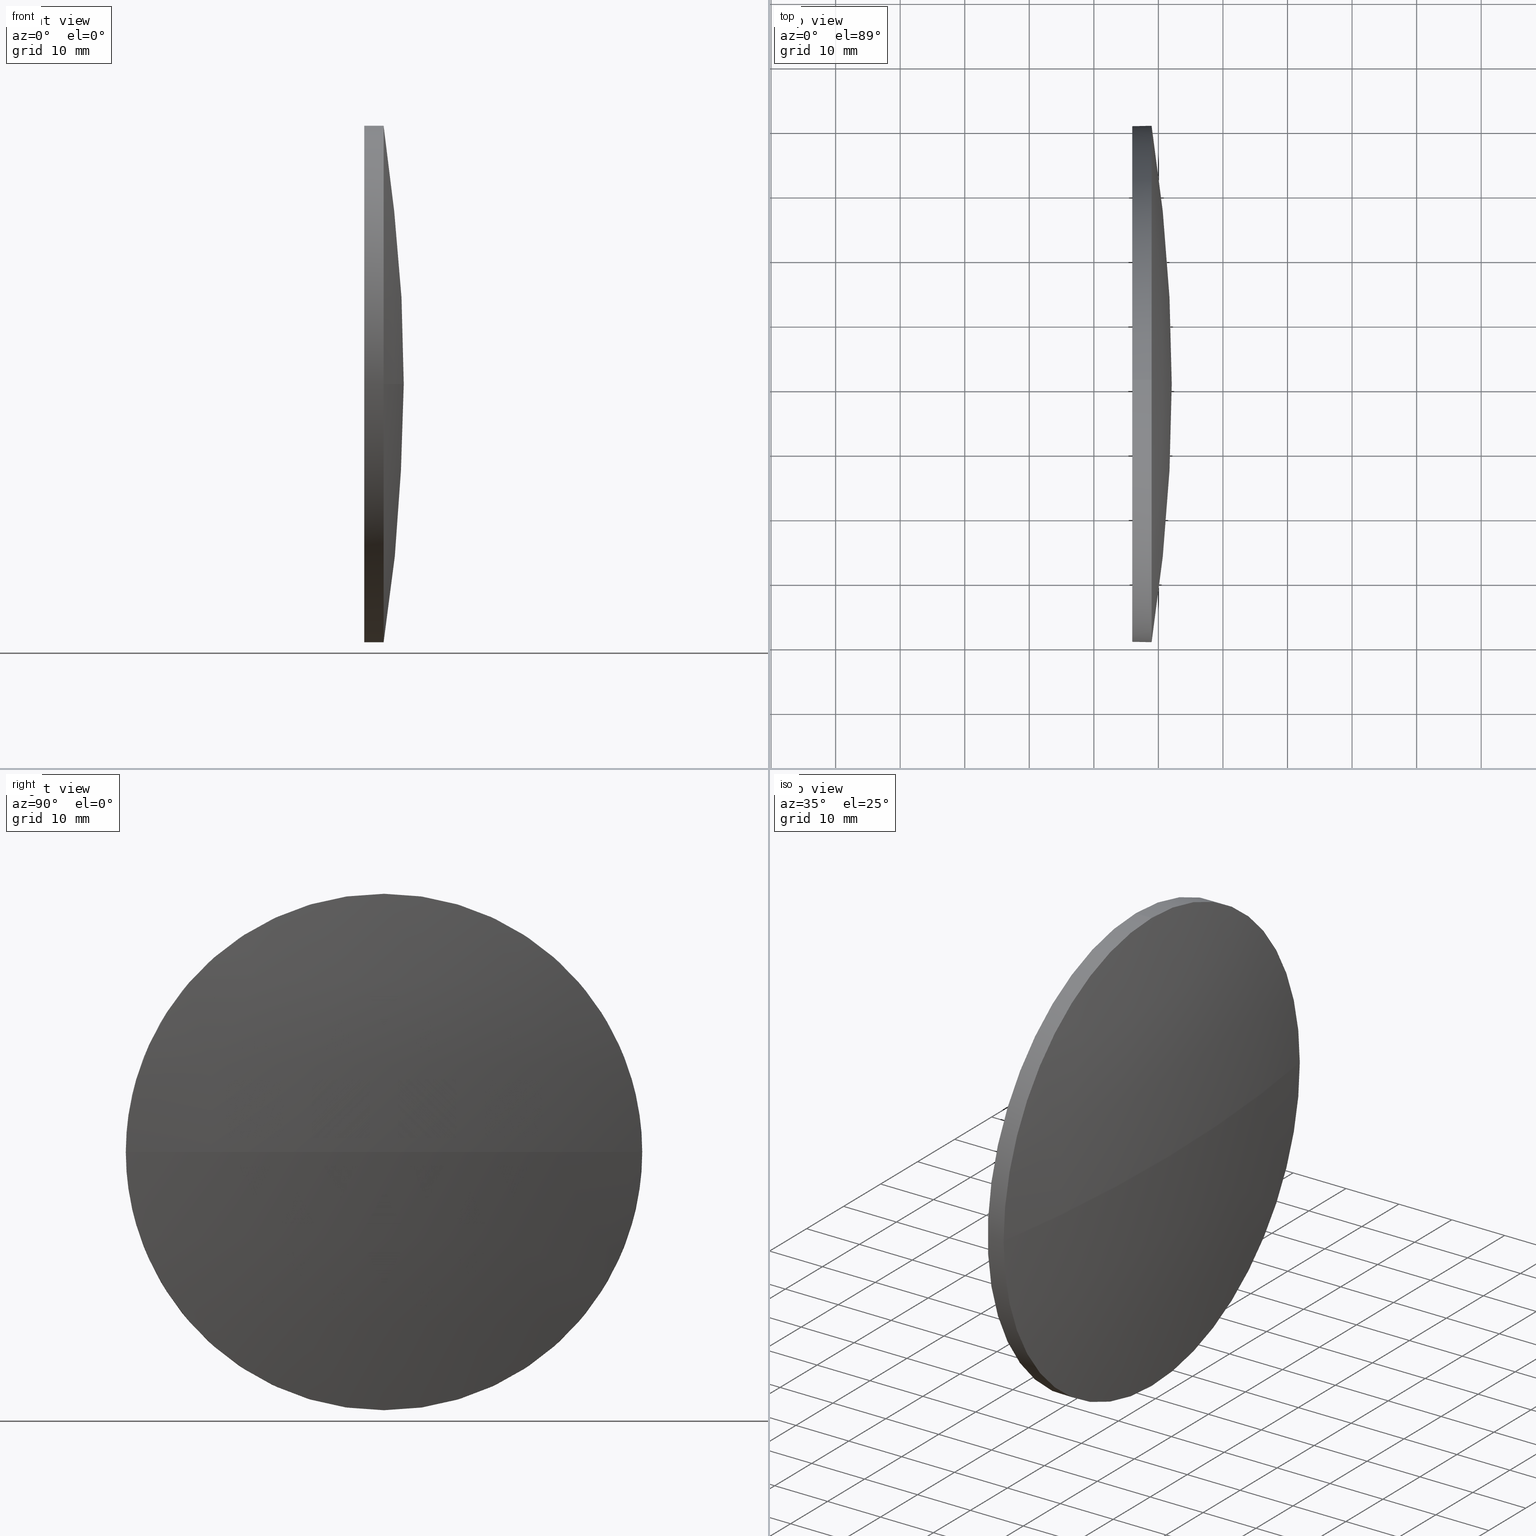
[diagram: canonical four-view strip — front | top / right | iso, engineering-drawing reading convention]
A machine part, canonical four-view strip (front | top / right | iso — engineering-drawing reading convention). The complete STEP part file that produces these views, byte-faithful:
ISO-10303-21;
HEADER;
FILE_DESCRIPTION (( 'STEP AP214' ),
    '1' );
FILE_NAME ('100166.STEP',
    '2019-05-17T03:05:16',
    ( '' ),
    ( '' ),
    'SwSTEP 2.0',
    'SolidWorks 2016',
    '' );
FILE_SCHEMA (( 'AUTOMOTIVE_DESIGN' ));
ENDSEC;

DATA;
#1 = AXIS2_PLACEMENT_3D ( 'NONE', #184, #32, #147 ) ;
#2 = DIRECTION ( 'NONE',  ( -1.000000000000000000, -0.0000000000000000000, -0.0000000000000000000 ) ) ;
#3 = CARTESIAN_POINT ( 'NONE',  ( 217.9945825323866300, 130.4671098528244200, 0.0000000000000000000 ) ) ;
#4 = CARTESIAN_POINT ( 'NONE',  ( 217.9945825323866300, 130.4671098528244200, -40.00000000000000700 ) ) ;
#5 = CARTESIAN_POINT ( 'NONE',  ( 228.9490942240209100, 130.4671098528244200, 0.0000000000000000000 ) ) ;
#6 = PRODUCT_DEFINITION_FORMATION_WITH_SPECIFIED_SOURCE ( '�κ�', '', #140, .NOT_KNOWN. ) ;
#7 = ORIENTED_EDGE ( 'NONE', *, *, #75, .T. ) ;
#8 = CIRCLE ( 'NONE', #183, 40.00000000000000700 ) ;
#9 = UNCERTAINTY_MEASURE_WITH_UNIT (LENGTH_MEASURE( 1.000000000000000100E-005 ), #144, 'distance_accuracy_value', 'NONE');
#10 = FACE_OUTER_BOUND ( 'NONE', #152, .T. ) ;
#11 = VERTEX_POINT ( 'NONE', #104 ) ;
#12 = EDGE_CURVE ( 'NONE', #65, #142, #182, .T. ) ;
#13 = CARTESIAN_POINT ( 'NONE',  ( 225.9490942240209100, 130.4671098528244200, 0.0000000000000000000 ) ) ;
#14 = FILL_AREA_STYLE_COLOUR ( '', #117 ) ;
#15 = DIRECTION ( 'NONE',  ( -0.0000000000000000000, 0.0000000000000000000, 1.000000000000000000 ) ) ;
#16 = STYLED_ITEM ( 'NONE', ( #47 ), #165 ) ;
#17 = AXIS2_PLACEMENT_3D ( 'NONE', #40, #119, #102 ) ;
#18 = DIRECTION ( 'NONE',  ( -1.000000000000000000, -0.0000000000000000000, -0.0000000000000000000 ) ) ;
#19 = DIRECTION ( 'NONE',  ( -1.000000000000000000, -0.0000000000000000000, -0.0000000000000000000 ) ) ;
#20 = ORIENTED_EDGE ( 'NONE', *, *, #158, .T. ) ;
#21 = EDGE_CURVE ( 'NONE', #65, #124, #161, .T. ) ;
#22 = CIRCLE ( 'NONE', #89, 257.9702564102559600 ) ;
#23 = AXIS2_PLACEMENT_3D ( 'NONE', #5, #2, #98 ) ;
#24 = ORIENTED_EDGE ( 'NONE', *, *, #108, .T. ) ;
#25 = FILL_AREA_STYLE ('',( #14 ) ) ;
#26 = APPLICATION_CONTEXT ( 'automotive_design' ) ;
#27 = AXIS2_PLACEMENT_3D ( 'NONE', #77, #127, #159 ) ;
#28 = EDGE_LOOP ( 'NONE', ( #36, #53 ) ) ;
#29 = DIRECTION ( 'NONE',  ( -1.000000000000000000, -0.0000000000000000000, -0.0000000000000000000 ) ) ;
#30 = CYLINDRICAL_SURFACE ( 'NONE', #63, 40.00000000000000700 ) ;
#31 = CARTESIAN_POINT ( 'NONE',  ( 228.9490942240209100, 170.4671098528244500, 0.0000000000000000000 ) ) ;
#32 = DIRECTION ( 'NONE',  ( -0.0000000000000000000, 0.0000000000000000000, -1.000000000000000000 ) ) ;
#33 = VERTEX_POINT ( 'NONE', #173 ) ;
#34 = EDGE_CURVE ( 'NONE', #167, #11, #82, .T. ) ;
#35 = ORIENTED_EDGE ( 'NONE', *, *, #158, .F. ) ;
#36 = ORIENTED_EDGE ( 'NONE', *, *, #42, .T. ) ;
#37 = AXIS2_PLACEMENT_3D ( 'NONE', #150, #151, #61 ) ;
#38 = CIRCLE ( 'NONE', #96, 40.00000000000000700 ) ;
#39 = DIRECTION ( 'NONE',  ( 0.0000000000000000000, 0.0000000000000000000, 1.000000000000000000 ) ) ;
#40 = CARTESIAN_POINT ( 'NONE',  ( 0.0000000000000000000, 0.0000000000000000000, 0.0000000000000000000 ) ) ;
#41 =( NAMED_UNIT ( * ) SI_UNIT ( $, .STERADIAN. ) SOLID_ANGLE_UNIT ( ) );
#42 = EDGE_CURVE ( 'NONE', #142, #179, #8, .T. ) ;
#43 = SURFACE_SIDE_STYLE ('',( #136 ) ) ;
#44 = PLANE ( 'NONE',  #37 ) ;
#45 = VECTOR ( 'NONE', #19, 1000.000000000000000 ) ;
#46 = EDGE_CURVE ( 'NONE', #33, #124, #157, .T. ) ;
#47 = PRESENTATION_STYLE_ASSIGNMENT (( #130 ) ) ;
#48 = FACE_OUTER_BOUND ( 'NONE', #134, .T. ) ;
#49 = ORIENTED_EDGE ( 'NONE', *, *, #46, .T. ) ;
#50 = AXIS2_PLACEMENT_3D ( 'NONE', #74, #84, #177 ) ;
#51 = PRODUCT_DEFINITION ( 'δ֪', '', #6, #67 ) ;
#52 = APPLICATION_PROTOCOL_DEFINITION ( 'draft international standard', 'automotive_design', 1998, #160 ) ;
#53 = ORIENTED_EDGE ( 'NONE', *, *, #105, .T. ) ;
#54 =( NAMED_UNIT ( * ) SI_UNIT ( $, .STERADIAN. ) SOLID_ANGLE_UNIT ( ) );
#55 = STYLED_ITEM ( 'NONE', ( #138 ), #128 ) ;
#56 =( NAMED_UNIT ( * ) SI_UNIT ( $, .STERADIAN. ) SOLID_ANGLE_UNIT ( ) );
#57 = CARTESIAN_POINT ( 'NONE',  ( 228.9490942240209100, 130.4671098528244200, 40.00000000000000700 ) ) ;
#58 = CARTESIAN_POINT ( 'NONE',  ( 225.9490942240209100, 130.4671098528244200, 0.0000000000000000000 ) ) ;
#59 =( NAMED_UNIT ( * ) PLANE_ANGLE_UNIT ( ) SI_UNIT ( $, .RADIAN. ) );
#60 = DIRECTION ( 'NONE',  ( 0.0000000000000000000, 0.0000000000000000000, 1.000000000000000000 ) ) ;
#61 = DIRECTION ( 'NONE',  ( 0.0000000000000000000, 0.0000000000000000000, -1.000000000000000000 ) ) ;
#62 = ADVANCED_FACE ( 'NONE', ( #10 ), #81, .T. ) ;
#63 = AXIS2_PLACEMENT_3D ( 'NONE', #3, #100, #146 ) ;
#64 = PRODUCT_RELATED_PRODUCT_CATEGORY ( 'part', '', ( #140 ) ) ;
#65 = VERTEX_POINT ( 'NONE', #57 ) ;
#66 = MECHANICAL_DESIGN_GEOMETRIC_PRESENTATION_REPRESENTATION (  '', ( #55 ), #80 ) ;
#67 = PRODUCT_DEFINITION_CONTEXT ( 'detailed design', #26, 'design' ) ;
#68 = ORIENTED_EDGE ( 'NONE', *, *, #42, .F. ) ;
#69 = CARTESIAN_POINT ( 'NONE',  ( -25.90116218623498400, 130.4671098528244200, 0.0000000000000000000 ) ) ;
#70 = PRODUCT_CONTEXT ( 'NONE', #160, 'mechanical' ) ;
#71 = CARTESIAN_POINT ( 'NONE',  ( -25.90116218623498400, 130.4671098528244200, 0.0000000000000000000 ) ) ;
#72 = DIRECTION ( 'NONE',  ( 0.0000000000000000000, 1.224646799147353200E-016, -1.000000000000000000 ) ) ;
#73 = CARTESIAN_POINT ( 'NONE',  ( 228.9490942240209100, 130.4671098528244200, 0.0000000000000000000 ) ) ;
#74 = CARTESIAN_POINT ( 'NONE',  ( 228.9490942240209100, 130.4671098528244200, 0.0000000000000000000 ) ) ;
#75 = EDGE_CURVE ( 'NONE', #11, #65, #38, .T. ) ;
#76 = DIRECTION ( 'NONE',  ( -1.000000000000000000, -0.0000000000000000000, -0.0000000000000000000 ) ) ;
#77 = CARTESIAN_POINT ( 'NONE',  ( 228.9490942240209100, 130.4671098528244200, 0.0000000000000000000 ) ) ;
#78 = ORIENTED_EDGE ( 'NONE', *, *, #12, .T. ) ;
#79 = CIRCLE ( 'NONE', #27, 40.00000000000000700 ) ;
#80 =( GEOMETRIC_REPRESENTATION_CONTEXT ( 3 ) GLOBAL_UNCERTAINTY_ASSIGNED_CONTEXT ( ( #109 ) ) GLOBAL_UNIT_ASSIGNED_CONTEXT ( ( #149, #59, #41 ) ) REPRESENTATION_CONTEXT ( 'NONE', 'WORKASPACE' ) );
#81 = SPHERICAL_SURFACE ( 'NONE', #1, 257.9702564102559000 ) ;
#82 = CIRCLE ( 'NONE', #50, 40.00000000000000700 ) ;
#83 = EDGE_CURVE ( 'NONE', #124, #167, #79, .T. ) ;
#84 = DIRECTION ( 'NONE',  ( -1.000000000000000000, -0.0000000000000000000, -0.0000000000000000000 ) ) ;
#85 = SPHERICAL_SURFACE ( 'NONE', #126, 257.9702564102559000 ) ;
#86 = FACE_OUTER_BOUND ( 'NONE', #28, .T. ) ;
#87 =( LENGTH_UNIT ( ) NAMED_UNIT ( * ) SI_UNIT ( .MILLI., .METRE. ) );
#88 = DIRECTION ( 'NONE',  ( -0.0000000000000000000, 0.0000000000000000000, -1.000000000000000000 ) ) ;
#89 = AXIS2_PLACEMENT_3D ( 'NONE', #69, #72, #143 ) ;
#90 = FILL_AREA_STYLE ('',( #133 ) ) ;
#91 = DIRECTION ( 'NONE',  ( 0.0000000000000000000, 0.0000000000000000000, 1.000000000000000000 ) ) ;
#92 = ADVANCED_FACE ( 'NONE', ( #86 ), #44, .F. ) ;
#93 = ORIENTED_EDGE ( 'NONE', *, *, #34, .F. ) ;
#94 = AXIS2_PLACEMENT_3D ( 'NONE', #122, #15, #120 ) ;
#95 = ORIENTED_EDGE ( 'NONE', *, *, #12, .F. ) ;
#96 = AXIS2_PLACEMENT_3D ( 'NONE', #73, #29, #60 ) ;
#97 = VECTOR ( 'NONE', #18, 1000.000000000000000 ) ;
#98 = DIRECTION ( 'NONE',  ( 0.0000000000000000000, 0.0000000000000000000, 1.000000000000000000 ) ) ;
#99 = CLOSED_SHELL ( 'NONE', ( #178, #166, #62, #153, #92 ) ) ;
#100 = DIRECTION ( 'NONE',  ( -1.000000000000000000, -0.0000000000000000000, -0.0000000000000000000 ) ) ;
#101 = DIRECTION ( 'NONE',  ( 0.0000000000000000000, 1.000000000000000000, 0.0000000000000000000 ) ) ;
#102 = DIRECTION ( 'NONE',  ( 1.000000000000000000, 0.0000000000000000000, 0.0000000000000000000 ) ) ;
#103 = FACE_OUTER_BOUND ( 'NONE', #180, .T. ) ;
#104 = CARTESIAN_POINT ( 'NONE',  ( 228.9490942240209100, 90.46710985282437900, -4.898587196589416200E-015 ) ) ;
#105 = EDGE_CURVE ( 'NONE', #179, #142, #154, .T. ) ;
#106 = LINE ( 'NONE', #4, #97 ) ;
#107 = SHAPE_DEFINITION_REPRESENTATION ( #131, #165 ) ;
#108 = EDGE_CURVE ( 'NONE', #167, #179, #106, .T. ) ;
#109 = UNCERTAINTY_MEASURE_WITH_UNIT (LENGTH_MEASURE( 1.000000000000000100E-005 ), #149, 'distance_accuracy_value', 'NONE');
#110 = ORIENTED_EDGE ( 'NONE', *, *, #105, .F. ) ;
#111 = PRESENTATION_LAYER_ASSIGNMENT (  '', '', ( #16 ) ) ;
#112 = DIRECTION ( 'NONE',  ( -1.000000000000000000, -0.0000000000000000000, -0.0000000000000000000 ) ) ;
#113 = CYLINDRICAL_SURFACE ( 'NONE', #148, 40.00000000000000700 ) ;
#114 =( NAMED_UNIT ( * ) PLANE_ANGLE_UNIT ( ) SI_UNIT ( $, .RADIAN. ) );
#115 =( NAMED_UNIT ( * ) PLANE_ANGLE_UNIT ( ) SI_UNIT ( $, .RADIAN. ) );
#116 = ORIENTED_EDGE ( 'NONE', *, *, #83, .F. ) ;
#117 = COLOUR_RGB ( '',1.000000000000000000, 1.000000000000000000, 1.000000000000000000 ) ;
#118 = PRESENTATION_LAYER_ASSIGNMENT (  '', '', ( #55 ) ) ;
#119 = DIRECTION ( 'NONE',  ( 0.0000000000000000000, 0.0000000000000000000, 1.000000000000000000 ) ) ;
#120 = DIRECTION ( 'NONE',  ( 1.000000000000000000, 0.0000000000000000000, 0.0000000000000000000 ) ) ;
#121 = CARTESIAN_POINT ( 'NONE',  ( 225.9490942240209100, 130.4671098528244200, 40.00000000000000700 ) ) ;
#122 = CARTESIAN_POINT ( 'NONE',  ( -25.90116218623498400, 130.4671098528244200, 0.0000000000000000000 ) ) ;
#123 = ORIENTED_EDGE ( 'NONE', *, *, #75, .F. ) ;
#124 = VERTEX_POINT ( 'NONE', #31 ) ;
#125 = ORIENTED_EDGE ( 'NONE', *, *, #46, .F. ) ;
#126 = AXIS2_PLACEMENT_3D ( 'NONE', #71, #88, #101 ) ;
#127 = DIRECTION ( 'NONE',  ( -1.000000000000000000, -0.0000000000000000000, -0.0000000000000000000 ) ) ;
#128 = MANIFOLD_SOLID_BREP ( '��ת1', #99 ) ;
#129 = ORIENTED_EDGE ( 'NONE', *, *, #34, .T. ) ;
#130 = SURFACE_STYLE_USAGE ( .BOTH. , #141 ) ;
#131 = PRODUCT_DEFINITION_SHAPE ( 'NONE', 'NONE',  #51 ) ;
#132 = DIRECTION ( 'NONE',  ( -1.000000000000000000, -0.0000000000000000000, -0.0000000000000000000 ) ) ;
#133 = FILL_AREA_STYLE_COLOUR ( '', #174 ) ;
#134 = EDGE_LOOP ( 'NONE', ( #125, #20, #93, #116 ) ) ;
#135 =( GEOMETRIC_REPRESENTATION_CONTEXT ( 3 ) GLOBAL_UNCERTAINTY_ASSIGNED_CONTEXT ( ( #139 ) ) GLOBAL_UNIT_ASSIGNED_CONTEXT ( ( #87, #115, #56 ) ) REPRESENTATION_CONTEXT ( 'NONE', 'WORKASPACE' ) );
#136 = SURFACE_STYLE_FILL_AREA ( #90 ) ;
#137 = ORIENTED_EDGE ( 'NONE', *, *, #83, .T. ) ;
#138 = PRESENTATION_STYLE_ASSIGNMENT (( #176 ) ) ;
#139 = UNCERTAINTY_MEASURE_WITH_UNIT (LENGTH_MEASURE( 1.000000000000000100E-005 ), #87, 'distance_accuracy_value', 'NONE');
#140 = PRODUCT ( '100166', '100166', '', ( #70 ) ) ;
#141 = SURFACE_SIDE_STYLE ('',( #185 ) ) ;
#142 = VERTEX_POINT ( 'NONE', #121 ) ;
#143 = DIRECTION ( 'NONE',  ( 0.0000000000000000000, 1.000000000000000000, 1.224646799147353000E-016 ) ) ;
#144 =( LENGTH_UNIT ( ) NAMED_UNIT ( * ) SI_UNIT ( .MILLI., .METRE. ) );
#145 = APPLICATION_PROTOCOL_DEFINITION ( 'draft international standard', 'automotive_design', 1998, #26 ) ;
#146 = DIRECTION ( 'NONE',  ( 0.0000000000000000000, 0.0000000000000000000, 1.000000000000000000 ) ) ;
#147 = DIRECTION ( 'NONE',  ( 0.0000000000000000000, 1.000000000000000000, 0.0000000000000000000 ) ) ;
#148 = AXIS2_PLACEMENT_3D ( 'NONE', #164, #76, #39 ) ;
#149 =( LENGTH_UNIT ( ) NAMED_UNIT ( * ) SI_UNIT ( .MILLI., .METRE. ) );
#150 = CARTESIAN_POINT ( 'NONE',  ( 225.9490942240209100, 130.4671098528244200, 0.0000000000000000000 ) ) ;
#151 = DIRECTION ( 'NONE',  ( 1.000000000000000000, 0.0000000000000000000, 0.0000000000000000000 ) ) ;
#152 = EDGE_LOOP ( 'NONE', ( #35, #49, #186, #123 ) ) ;
#153 = ADVANCED_FACE ( 'NONE', ( #168 ), #113, .T. ) ;
#154 = CIRCLE ( 'NONE', #175, 40.00000000000000700 ) ;
#155 = MECHANICAL_DESIGN_GEOMETRIC_PRESENTATION_REPRESENTATION (  '', ( #16 ), #181 ) ;
#156 = ORIENTED_EDGE ( 'NONE', *, *, #21, .T. ) ;
#157 = CIRCLE ( 'NONE', #94, 257.9702564102559000 ) ;
#158 = EDGE_CURVE ( 'NONE', #33, #11, #22, .T. ) ;
#159 = DIRECTION ( 'NONE',  ( 0.0000000000000000000, 0.0000000000000000000, 1.000000000000000000 ) ) ;
#160 = APPLICATION_CONTEXT ( 'automotive_design' ) ;
#161 = CIRCLE ( 'NONE', #23, 40.00000000000000700 ) ;
#162 = CARTESIAN_POINT ( 'NONE',  ( 217.9945825323866300, 130.4671098528244200, 40.00000000000000700 ) ) ;
#163 = DIRECTION ( 'NONE',  ( 0.0000000000000000000, 0.0000000000000000000, 1.000000000000000000 ) ) ;
#164 = CARTESIAN_POINT ( 'NONE',  ( 217.9945825323866300, 130.4671098528244200, 0.0000000000000000000 ) ) ;
#165 = ADVANCED_BREP_SHAPE_REPRESENTATION ( '100166', ( #128, #17 ), #135 ) ;
#166 = ADVANCED_FACE ( 'NONE', ( #48 ), #85, .T. ) ;
#167 = VERTEX_POINT ( 'NONE', #172 ) ;
#168 = FACE_OUTER_BOUND ( 'NONE', #169, .T. ) ;
#169 = EDGE_LOOP ( 'NONE', ( #170, #129, #7, #78, #110 ) ) ;
#170 = ORIENTED_EDGE ( 'NONE', *, *, #108, .F. ) ;
#171 = CARTESIAN_POINT ( 'NONE',  ( 225.9490942240209100, 130.4671098528244200, -40.00000000000000700 ) ) ;
#172 = CARTESIAN_POINT ( 'NONE',  ( 228.9490942240209100, 130.4671098528244200, -40.00000000000000700 ) ) ;
#173 = CARTESIAN_POINT ( 'NONE',  ( 232.0690942240209200, 130.4671098528244500, 0.0000000000000000000 ) ) ;
#174 = COLOUR_RGB ( '',1.000000000000000000, 1.000000000000000000, 1.000000000000000000 ) ;
#175 = AXIS2_PLACEMENT_3D ( 'NONE', #58, #132, #163 ) ;
#176 = SURFACE_STYLE_USAGE ( .BOTH. , #43 ) ;
#177 = DIRECTION ( 'NONE',  ( 0.0000000000000000000, 0.0000000000000000000, 1.000000000000000000 ) ) ;
#178 = ADVANCED_FACE ( 'NONE', ( #103 ), #30, .T. ) ;
#179 = VERTEX_POINT ( 'NONE', #171 ) ;
#180 = EDGE_LOOP ( 'NONE', ( #137, #24, #68, #95, #156 ) ) ;
#181 =( GEOMETRIC_REPRESENTATION_CONTEXT ( 3 ) GLOBAL_UNCERTAINTY_ASSIGNED_CONTEXT ( ( #9 ) ) GLOBAL_UNIT_ASSIGNED_CONTEXT ( ( #144, #114, #54 ) ) REPRESENTATION_CONTEXT ( 'NONE', 'WORKASPACE' ) );
#182 = LINE ( 'NONE', #162, #45 ) ;
#183 = AXIS2_PLACEMENT_3D ( 'NONE', #13, #112, #91 ) ;
#184 = CARTESIAN_POINT ( 'NONE',  ( -25.90116218623498400, 130.4671098528244200, 0.0000000000000000000 ) ) ;
#185 = SURFACE_STYLE_FILL_AREA ( #25 ) ;
#186 = ORIENTED_EDGE ( 'NONE', *, *, #21, .F. ) ;
ENDSEC;
END-ISO-10303-21;
